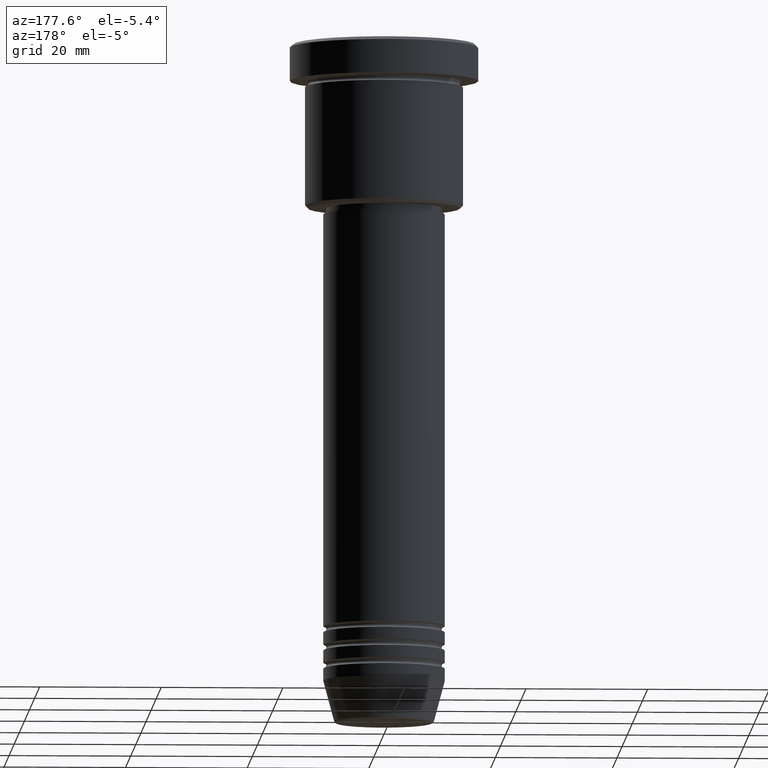
[diagram: clean part render]
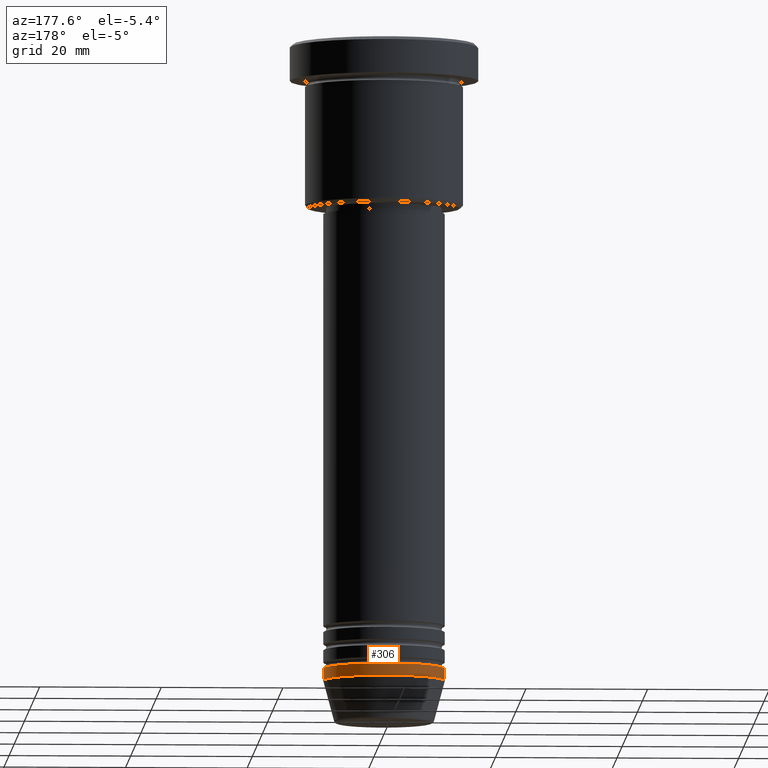
[diagram: same view with one face highlighted and labeled with its STEP entity id]
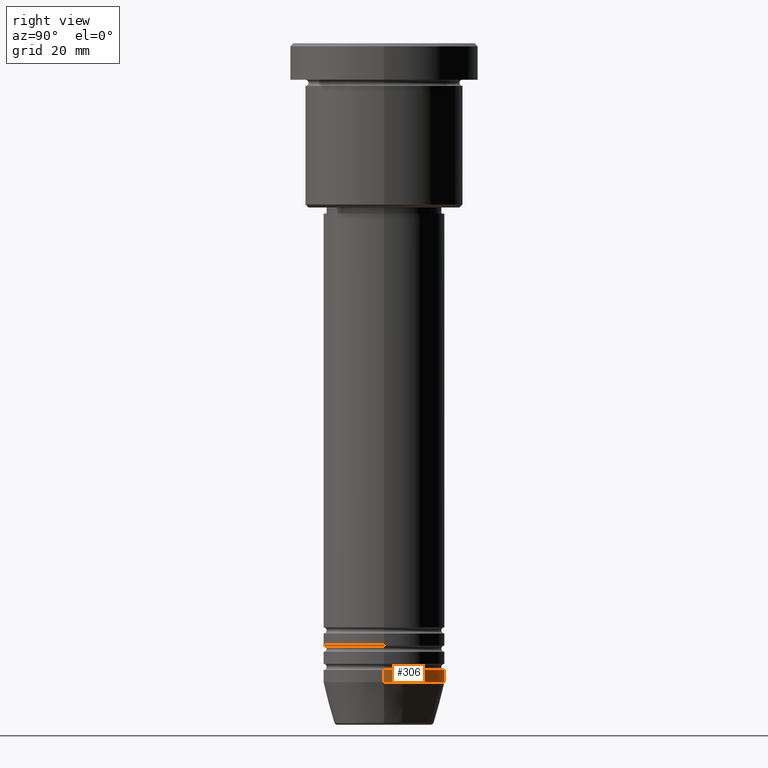
[diagram: same view with one face highlighted and labeled with its STEP entity id]
A machine part, auxiliary view. The second image highlights one B-rep face of the part: STEP entity #306.
A second angle (right view) of the same face is appended — the face is thin or edge-on in the first view.
In plain terms, the highlighted cylindrical surface (partial cylindrical patch) has radius 10 mm, axis along (-0, -0, 1).
Its self-contained STEP definition (entity closure, byte-faithful):
#9 = DIRECTION ( 'NONE',  ( -0.000000000000000000, -0.000000000000000000, 1.000000000000000000 ) ) ;
#15 = EDGE_LOOP ( 'NONE', ( #1064, #378, #781, #833 ) ) ;
#40 = DIRECTION ( 'NONE',  ( -0.000000000000000000, -0.000000000000000000, 1.000000000000000000 ) ) ;
#48 = VERTEX_POINT ( 'NONE', #355 ) ;
#129 = AXIS2_PLACEMENT_3D ( 'NONE', #1031, #1125, #660 ) ;
#174 = AXIS2_PLACEMENT_3D ( 'NONE', #1099, #820, #545 ) ;
#194 = CARTESIAN_POINT ( 'NONE',  ( 10.00000000000000000, 0.000000000000000000, -103.0000000000000142 ) ) ;
#212 = VERTEX_POINT ( 'NONE', #483 ) ;
#235 = CIRCLE ( 'NONE', #174, 10.00000000000000000 ) ;
#282 = LINE ( 'NONE', #646, #1164 ) ;
#306 = ADVANCED_FACE ( 'NONE', ( #521 ), #799, .T. ) ;
#355 = CARTESIAN_POINT ( 'NONE',  ( -10.00000000000000000, 1.224646799147353256E-15, -103.0000000000000142 ) ) ;
#378 = ORIENTED_EDGE ( 'NONE', *, *, #930, .T. ) ;
#483 = CARTESIAN_POINT ( 'NONE',  ( 10.00000000000000000, 0.000000000000000000, -105.0000000000000142 ) ) ;
#510 = VECTOR ( 'NONE', #9, 1000.000000000000000 ) ;
#521 = FACE_OUTER_BOUND ( 'NONE', #15, .T. ) ;
#530 = CARTESIAN_POINT ( 'NONE',  ( 10.00000000000000000, 0.000000000000000000, 0.000000000000000000 ) ) ;
#533 = DIRECTION ( 'NONE',  ( -0.000000000000000000, -0.000000000000000000, 1.000000000000000000 ) ) ;
#545 = DIRECTION ( 'NONE',  ( 1.000000000000000000, 0.000000000000000000, 0.000000000000000000 ) ) ;
#599 = VERTEX_POINT ( 'NONE', #194 ) ;
#623 = DIRECTION ( 'NONE',  ( 1.000000000000000000, 0.000000000000000000, 0.000000000000000000 ) ) ;
#646 = CARTESIAN_POINT ( 'NONE',  ( -10.00000000000000000, 1.224646799147353256E-15, 0.000000000000000000 ) ) ;
#660 = DIRECTION ( 'NONE',  ( 1.000000000000000000, 0.000000000000000000, 0.000000000000000000 ) ) ;
#709 = EDGE_CURVE ( 'NONE', #599, #48, #997, .T. ) ;
#781 = ORIENTED_EDGE ( 'NONE', *, *, #709, .F. ) ;
#799 = CYLINDRICAL_SURFACE ( 'NONE', #869, 10.00000000000000000 ) ;
#820 = DIRECTION ( 'NONE',  ( -0.000000000000000000, -0.000000000000000000, 1.000000000000000000 ) ) ;
#833 = ORIENTED_EDGE ( 'NONE', *, *, #1139, .F. ) ;
#863 = CARTESIAN_POINT ( 'NONE',  ( -10.00000000000000000, 1.224646799147353256E-15, -105.0000000000000142 ) ) ;
#869 = AXIS2_PLACEMENT_3D ( 'NONE', #890, #533, #623 ) ;
#890 = CARTESIAN_POINT ( 'NONE',  ( 0.000000000000000000, 0.000000000000000000, 0.000000000000000000 ) ) ;
#930 = EDGE_CURVE ( 'NONE', #998, #48, #282, .T. ) ;
#997 = CIRCLE ( 'NONE', #129, 10.00000000000000000 ) ;
#998 = VERTEX_POINT ( 'NONE', #863 ) ;
#1031 = CARTESIAN_POINT ( 'NONE',  ( 0.000000000000000000, 0.000000000000000000, -103.0000000000000142 ) ) ;
#1063 = LINE ( 'NONE', #530, #510 ) ;
#1064 = ORIENTED_EDGE ( 'NONE', *, *, #1168, .T. ) ;
#1099 = CARTESIAN_POINT ( 'NONE',  ( 0.000000000000000000, 0.000000000000000000, -105.0000000000000142 ) ) ;
#1125 = DIRECTION ( 'NONE',  ( -0.000000000000000000, -0.000000000000000000, 1.000000000000000000 ) ) ;
#1139 = EDGE_CURVE ( 'NONE', #212, #599, #1063, .T. ) ;
#1164 = VECTOR ( 'NONE', #40, 1000.000000000000000 ) ;
#1168 = EDGE_CURVE ( 'NONE', #212, #998, #235, .T. ) ;